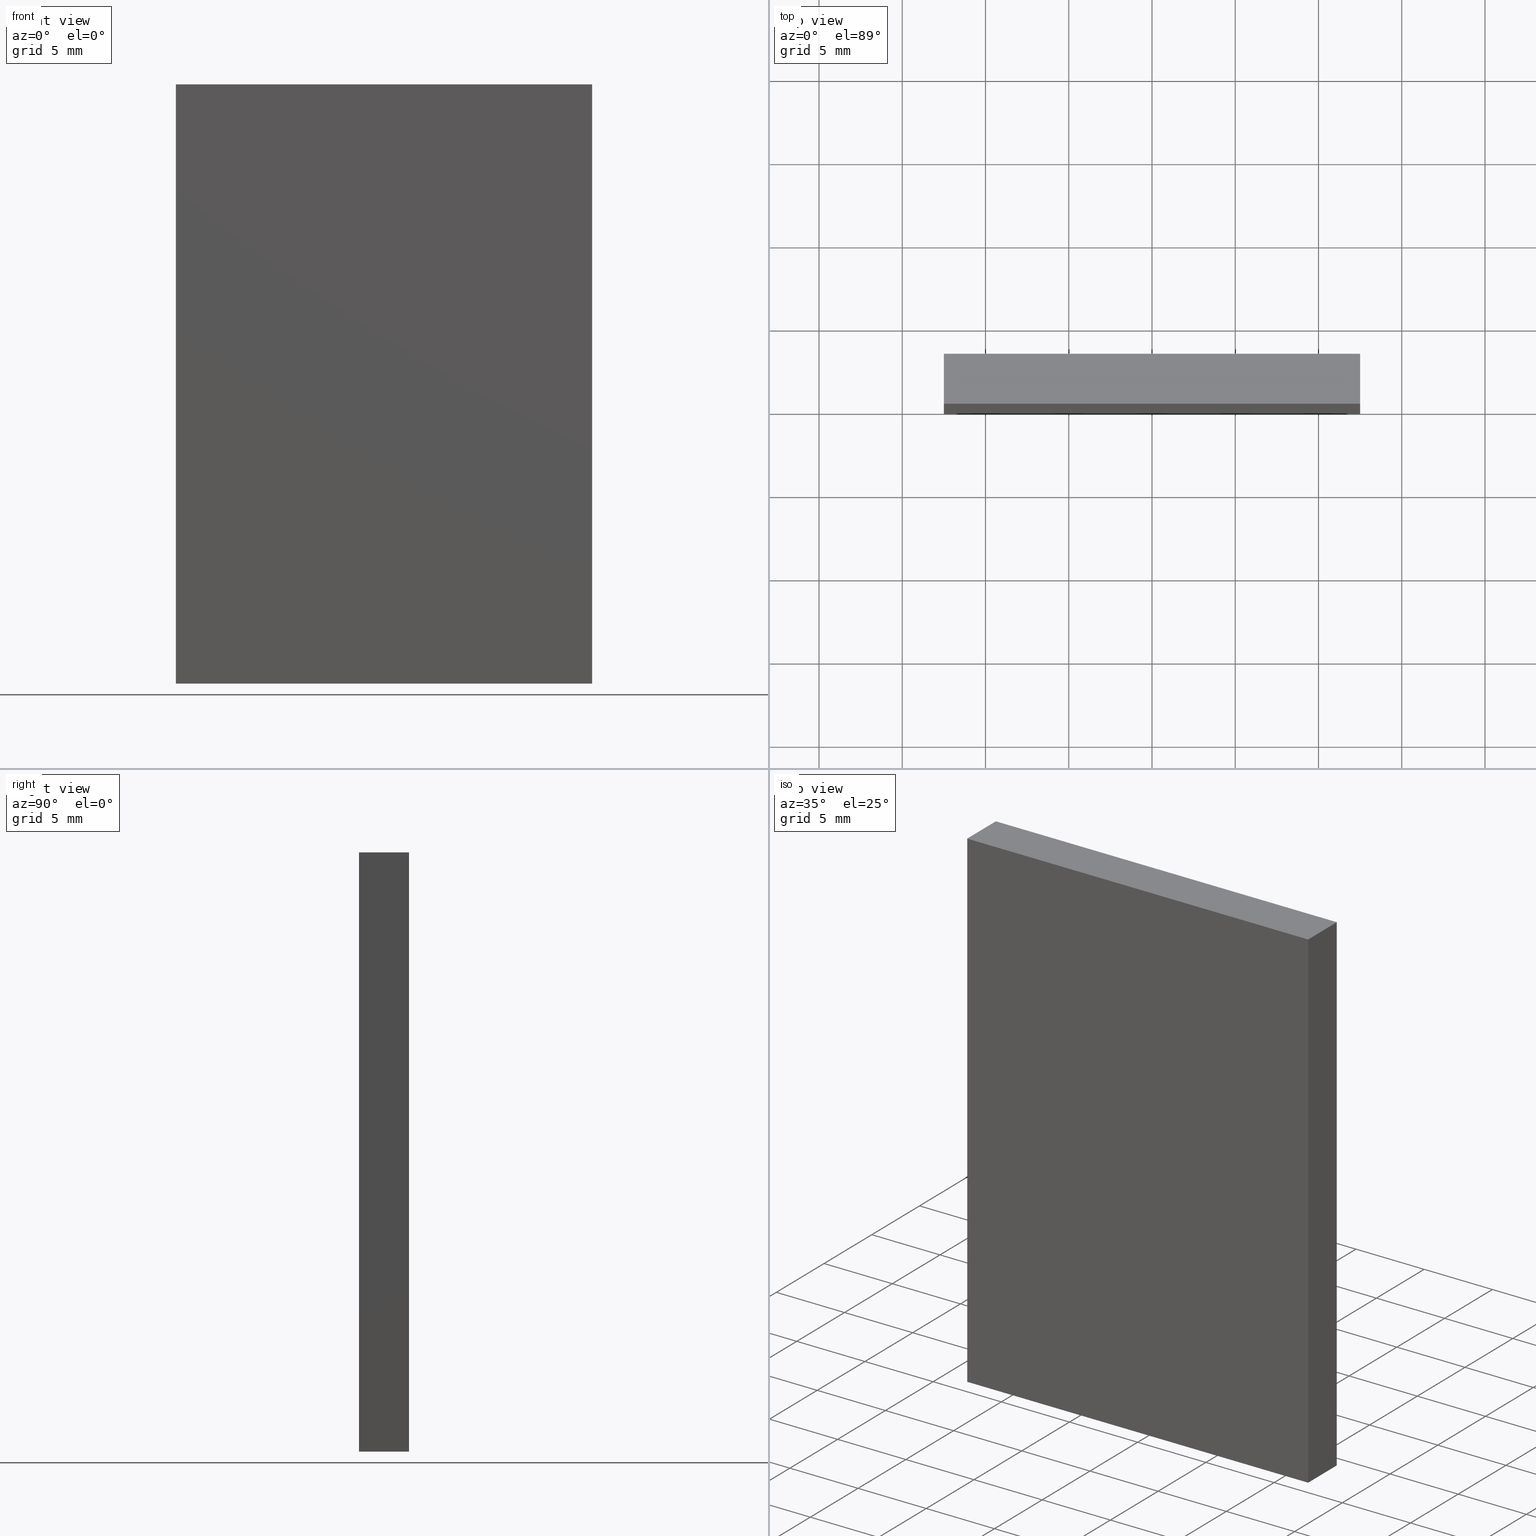
[diagram: canonical four-view strip — front | top / right | iso, engineering-drawing reading convention]
A machine part, canonical four-view strip (front | top / right | iso — engineering-drawing reading convention). The complete STEP part file that produces these views, byte-faithful:
ISO-10303-21;
HEADER;
FILE_DESCRIPTION (( 'STEP AP214' ),
    '1' );
FILE_NAME ('345505.STEP',
    '2019-08-12T03:39:13',
    ( 'user' ),
    ( '΢���й�' ),
    'SwSTEP 2.0',
    'SolidWorks 2016',
    '' );
FILE_SCHEMA (( 'AUTOMOTIVE_DESIGN' ));
ENDSEC;

DATA;
#1 = DIRECTION ( 'NONE',  ( -0.0000000000000000000, -1.000000000000000000, -0.0000000000000000000 ) ) ;
#2 = ORIENTED_EDGE ( 'NONE', *, *, #92, .F. ) ;
#3 = PRESENTATION_LAYER_ASSIGNMENT (  '', '', ( #184 ) ) ;
#4 = DIRECTION ( 'NONE',  ( 1.000000000000000000, 0.0000000000000000000, 0.0000000000000000000 ) ) ;
#5 = ADVANCED_FACE ( 'NONE', ( #111 ), #179, .F. ) ;
#6 = PLANE ( 'NONE',  #120 ) ;
#7 =( NAMED_UNIT ( * ) SI_UNIT ( $, .STERADIAN. ) SOLID_ANGLE_UNIT ( ) );
#8 = CLOSED_SHELL ( 'NONE', ( #75, #58, #133, #191, #117, #5 ) ) ;
#9 =( NAMED_UNIT ( * ) SI_UNIT ( $, .STERADIAN. ) SOLID_ANGLE_UNIT ( ) );
#10 = AXIS2_PLACEMENT_3D ( 'NONE', #45, #144, #164 ) ;
#11 = MECHANICAL_DESIGN_GEOMETRIC_PRESENTATION_REPRESENTATION (  '', ( #184 ), #19 ) ;
#12 = DIRECTION ( 'NONE',  ( 0.0000000000000000000, 1.000000000000000000, 0.0000000000000000000 ) ) ;
#13 = ORIENTED_EDGE ( 'NONE', *, *, #159, .F. ) ;
#14 = DIRECTION ( 'NONE',  ( -1.000000000000000000, -0.0000000000000000000, -0.0000000000000000000 ) ) ;
#15 = EDGE_LOOP ( 'NONE', ( #178, #13, #151, #60 ) ) ;
#16 = VECTOR ( 'NONE', #14, 1000.000000000000000 ) ;
#17 = LINE ( 'NONE', #122, #127 ) ;
#18 = PRODUCT_DEFINITION ( 'δ֪', '', #31, #20 ) ;
#19 =( GEOMETRIC_REPRESENTATION_CONTEXT ( 3 ) GLOBAL_UNCERTAINTY_ASSIGNED_CONTEXT ( ( #47 ) ) GLOBAL_UNIT_ASSIGNED_CONTEXT ( ( #67, #182, #9 ) ) REPRESENTATION_CONTEXT ( 'NONE', 'WORKASPACE' ) );
#20 = PRODUCT_DEFINITION_CONTEXT ( 'detailed design', #173, 'design' ) ;
#21 = CARTESIAN_POINT ( 'NONE',  ( 12.49999999999999500, 3.000000000000000000, -17.99999999999999600 ) ) ;
#22 = CARTESIAN_POINT ( 'NONE',  ( 12.49999999999999500, 0.0000000000000000000, -17.99999999999999600 ) ) ;
#23 = FILL_AREA_STYLE ('',( #129 ) ) ;
#24 = EDGE_LOOP ( 'NONE', ( #98, #25, #119, #26 ) ) ;
#25 = ORIENTED_EDGE ( 'NONE', *, *, #174, .F. ) ;
#26 = ORIENTED_EDGE ( 'NONE', *, *, #99, .T. ) ;
#27 = PLANE ( 'NONE',  #198 ) ;
#28 = DIRECTION ( 'NONE',  ( 1.000000000000000000, 0.0000000000000000000, -1.445602896647339400E-016 ) ) ;
#29 = FACE_OUTER_BOUND ( 'NONE', #61, .T. ) ;
#30 = DIRECTION ( 'NONE',  ( 1.000000000000000000, 0.0000000000000000000, -0.0000000000000000000 ) ) ;
#31 = PRODUCT_DEFINITION_FORMATION_WITH_SPECIFIED_SOURCE ( '�κ�', '', #139, .NOT_KNOWN. ) ;
#32 = CARTESIAN_POINT ( 'NONE',  ( 12.50000000000000000, 0.0000000000000000000, 18.00000000000000400 ) ) ;
#33 = DIRECTION ( 'NONE',  ( -1.000000000000000000, 0.0000000000000000000, -0.0000000000000000000 ) ) ;
#34 = VERTEX_POINT ( 'NONE', #141 ) ;
#35 = EDGE_CURVE ( 'NONE', #142, #161, #56, .T. ) ;
#36 = FACE_OUTER_BOUND ( 'NONE', #188, .T. ) ;
#37 = VECTOR ( 'NONE', #69, 1000.000000000000000 ) ;
#38 = DIRECTION ( 'NONE',  ( -1.445602896647339400E-016, -0.0000000000000000000, -1.000000000000000000 ) ) ;
#39 = PRODUCT_RELATED_PRODUCT_CATEGORY ( 'part', '', ( #139 ) ) ;
#40 = ORIENTED_EDGE ( 'NONE', *, *, #49, .T. ) ;
#41 = DIRECTION ( 'NONE',  ( -1.445602896647339400E-016, 0.0000000000000000000, -1.000000000000000000 ) ) ;
#42 = CARTESIAN_POINT ( 'NONE',  ( -12.50000000000000000, 3.000000000000000000, 18.00000000000000400 ) ) ;
#43 = CARTESIAN_POINT ( 'NONE',  ( -12.50000000000000500, 3.000000000000000000, -17.99999999999999600 ) ) ;
#44 = DIRECTION ( 'NONE',  ( 1.000000000000000000, 0.0000000000000000000, 0.0000000000000000000 ) ) ;
#45 = CARTESIAN_POINT ( 'NONE',  ( 0.0000000000000000000, 0.0000000000000000000, 0.0000000000000000000 ) ) ;
#46 = APPLICATION_CONTEXT ( 'automotive_design' ) ;
#47 = UNCERTAINTY_MEASURE_WITH_UNIT (LENGTH_MEASURE( 1.000000000000000100E-005 ), #67, 'distance_accuracy_value', 'NONE');
#48 = ORIENTED_EDGE ( 'NONE', *, *, #134, .T. ) ;
#49 = EDGE_CURVE ( 'NONE', #34, #189, #63, .T. ) ;
#50 = CARTESIAN_POINT ( 'NONE',  ( -12.50000000000000500, 3.000000000000000000, -17.99999999999999600 ) ) ;
#51 = LINE ( 'NONE', #50, #192 ) ;
#52 = SURFACE_SIDE_STYLE ('',( #180 ) ) ;
#53 = ORIENTED_EDGE ( 'NONE', *, *, #92, .T. ) ;
#54 = DIRECTION ( 'NONE',  ( 1.445602896647339400E-016, 0.0000000000000000000, 1.000000000000000000 ) ) ;
#55 = EDGE_LOOP ( 'NONE', ( #89, #101, #168, #48 ) ) ;
#56 = LINE ( 'NONE', #93, #153 ) ;
#57 = CARTESIAN_POINT ( 'NONE',  ( -12.50000000000000000, 3.000000000000000000, 18.00000000000000400 ) ) ;
#58 = ADVANCED_FACE ( 'NONE', ( #29 ), #84, .F. ) ;
#59 = SURFACE_SIDE_STYLE ('',( #68 ) ) ;
#60 = ORIENTED_EDGE ( 'NONE', *, *, #70, .F. ) ;
#61 = EDGE_LOOP ( 'NONE', ( #193, #143, #2, #105 ) ) ;
#62 = COLOUR_RGB ( '',1.000000000000000000, 1.000000000000000000, 1.000000000000000000 ) ;
#63 = LINE ( 'NONE', #21, #158 ) ;
#64 = PLANE ( 'NONE',  #148 ) ;
#65 = DIRECTION ( 'NONE',  ( -0.0000000000000000000, -1.000000000000000000, -0.0000000000000000000 ) ) ;
#66 = VECTOR ( 'NONE', #65, 1000.000000000000000 ) ;
#67 =( LENGTH_UNIT ( ) NAMED_UNIT ( * ) SI_UNIT ( .MILLI., .METRE. ) );
#68 = SURFACE_STYLE_FILL_AREA ( #136 ) ;
#69 = DIRECTION ( 'NONE',  ( -0.0000000000000000000, -1.000000000000000000, -0.0000000000000000000 ) ) ;
#70 = EDGE_CURVE ( 'NONE', #83, #142, #200, .T. ) ;
#71 = ADVANCED_BREP_SHAPE_REPRESENTATION ( '345505', ( #138, #10 ), #110 ) ;
#72 = EDGE_CURVE ( 'NONE', #137, #34, #185, .T. ) ;
#73 = DIRECTION ( 'NONE',  ( -1.000000000000000000, -0.0000000000000000000, -0.0000000000000000000 ) ) ;
#74 = DIRECTION ( 'NONE',  ( 0.0000000000000000000, 0.0000000000000000000, 1.000000000000000000 ) ) ;
#75 = ADVANCED_FACE ( 'NONE', ( #162 ), #64, .F. ) ;
#76 = APPLICATION_PROTOCOL_DEFINITION ( 'draft international standard', 'automotive_design', 1998, #173 ) ;
#77 =( NAMED_UNIT ( * ) PLANE_ANGLE_UNIT ( ) SI_UNIT ( $, .RADIAN. ) );
#78 =( LENGTH_UNIT ( ) NAMED_UNIT ( * ) SI_UNIT ( .MILLI., .METRE. ) );
#79 = LINE ( 'NONE', #42, #66 ) ;
#80 = DIRECTION ( 'NONE',  ( -1.445602896647339400E-016, -0.0000000000000000000, -1.000000000000000000 ) ) ;
#81 = DIRECTION ( 'NONE',  ( 0.0000000000000000000, 1.000000000000000000, 0.0000000000000000000 ) ) ;
#82 = DIRECTION ( 'NONE',  ( 0.0000000000000000000, -0.0000000000000000000, 1.000000000000000000 ) ) ;
#83 = VERTEX_POINT ( 'NONE', #130 ) ;
#84 = PLANE ( 'NONE',  #121 ) ;
#85 = CARTESIAN_POINT ( 'NONE',  ( 12.49999999999999500, 3.000000000000000000, -17.99999999999999600 ) ) ;
#86 = DIRECTION ( 'NONE',  ( -0.0000000000000000000, -1.000000000000000000, -0.0000000000000000000 ) ) ;
#87 = SHAPE_DEFINITION_REPRESENTATION ( #108, #71 ) ;
#88 = EDGE_CURVE ( 'NONE', #189, #83, #17, .T. ) ;
#89 = ORIENTED_EDGE ( 'NONE', *, *, #35, .T. ) ;
#90 = LINE ( 'NONE', #186, #37 ) ;
#91 = VERTEX_POINT ( 'NONE', #96 ) ;
#92 = EDGE_CURVE ( 'NONE', #189, #91, #114, .T. ) ;
#93 = CARTESIAN_POINT ( 'NONE',  ( -12.50000000000000500, 0.0000000000000000000, -17.99999999999999600 ) ) ;
#94 = CARTESIAN_POINT ( 'NONE',  ( -12.50000000000000000, 0.0000000000000000000, 18.00000000000000400 ) ) ;
#95 = ORIENTED_EDGE ( 'NONE', *, *, #72, .T. ) ;
#96 = CARTESIAN_POINT ( 'NONE',  ( -12.50000000000000500, 3.000000000000000000, -17.99999999999999600 ) ) ;
#97 = PRESENTATION_STYLE_ASSIGNMENT (( #146 ) ) ;
#98 = ORIENTED_EDGE ( 'NONE', *, *, #159, .T. ) ;
#99 = EDGE_CURVE ( 'NONE', #137, #161, #79, .T. ) ;
#100 = AXIS2_PLACEMENT_3D ( 'NONE', #131, #12, #82 ) ;
#101 = ORIENTED_EDGE ( 'NONE', *, *, #99, .F. ) ;
#102 = VECTOR ( 'NONE', #44, 1000.000000000000000 ) ;
#103 = CARTESIAN_POINT ( 'NONE',  ( 12.49999999999999500, 3.000000000000000000, -17.99999999999999600 ) ) ;
#104 = ORIENTED_EDGE ( 'NONE', *, *, #145, .T. ) ;
#105 = ORIENTED_EDGE ( 'NONE', *, *, #88, .T. ) ;
#106 = ORIENTED_EDGE ( 'NONE', *, *, #88, .F. ) ;
#107 = LINE ( 'NONE', #116, #102 ) ;
#108 = PRODUCT_DEFINITION_SHAPE ( 'NONE', 'NONE',  #18 ) ;
#109 = VECTOR ( 'NONE', #4, 1000.000000000000000 ) ;
#110 =( GEOMETRIC_REPRESENTATION_CONTEXT ( 3 ) GLOBAL_UNCERTAINTY_ASSIGNED_CONTEXT ( ( #181 ) ) GLOBAL_UNIT_ASSIGNED_CONTEXT ( ( #172, #77, #7 ) ) REPRESENTATION_CONTEXT ( 'NONE', 'WORKASPACE' ) );
#111 = FACE_OUTER_BOUND ( 'NONE', #15, .T. ) ;
#112 = DIRECTION ( 'NONE',  ( 0.0000000000000000000, -0.0000000000000000000, 1.000000000000000000 ) ) ;
#113 = CARTESIAN_POINT ( 'NONE',  ( 0.0000000000000000000, 3.000000000000000000, 0.0000000000000000000 ) ) ;
#114 = LINE ( 'NONE', #152, #16 ) ;
#115 = CARTESIAN_POINT ( 'NONE',  ( -12.50000000000000000, 3.000000000000000000, 18.00000000000000400 ) ) ;
#116 = CARTESIAN_POINT ( 'NONE',  ( -12.50000000000000000, 0.0000000000000000000, 18.00000000000000400 ) ) ;
#117 = ADVANCED_FACE ( 'NONE', ( #36 ), #202, .T. ) ;
#118 = DIRECTION ( 'NONE',  ( 0.0000000000000000000, 0.0000000000000000000, -1.000000000000000000 ) ) ;
#119 = ORIENTED_EDGE ( 'NONE', *, *, #72, .F. ) ;
#120 = AXIS2_PLACEMENT_3D ( 'NONE', #57, #118, #33 ) ;
#121 = AXIS2_PLACEMENT_3D ( 'NONE', #43, #74, #30 ) ;
#122 = CARTESIAN_POINT ( 'NONE',  ( 12.49999999999999500, 3.000000000000000000, -17.99999999999999600 ) ) ;
#123 = VECTOR ( 'NONE', #38, 1000.000000000000000 ) ;
#124 = DIRECTION ( 'NONE',  ( 1.445602896647339400E-016, 0.0000000000000000000, 1.000000000000000000 ) ) ;
#125 = CARTESIAN_POINT ( 'NONE',  ( -12.50000000000000500, 0.0000000000000000000, -17.99999999999999600 ) ) ;
#126 = VECTOR ( 'NONE', #86, 1000.000000000000000 ) ;
#127 = VECTOR ( 'NONE', #1, 1000.000000000000000 ) ;
#128 = LINE ( 'NONE', #22, #123 ) ;
#129 = FILL_AREA_STYLE_COLOUR ( '', #140 ) ;
#130 = CARTESIAN_POINT ( 'NONE',  ( 12.49999999999999500, 0.0000000000000000000, -17.99999999999999600 ) ) ;
#131 = CARTESIAN_POINT ( 'NONE',  ( 0.0000000000000000000, 0.0000000000000000000, 0.0000000000000000000 ) ) ;
#132 =( NAMED_UNIT ( * ) SI_UNIT ( $, .STERADIAN. ) SOLID_ANGLE_UNIT ( ) );
#133 = ADVANCED_FACE ( 'NONE', ( #196 ), #27, .F. ) ;
#134 = EDGE_CURVE ( 'NONE', #91, #142, #90, .T. ) ;
#135 = FILL_AREA_STYLE_COLOUR ( '', #62 ) ;
#136 = FILL_AREA_STYLE ('',( #135 ) ) ;
#137 = VERTEX_POINT ( 'NONE', #167 ) ;
#138 = MANIFOLD_SOLID_BREP ( '͹̨-����1', #8 ) ;
#139 = PRODUCT ( '345505', '345505', '', ( #199 ) ) ;
#140 = COLOUR_RGB ( '',1.000000000000000000, 1.000000000000000000, 1.000000000000000000 ) ;
#141 = CARTESIAN_POINT ( 'NONE',  ( 12.50000000000000000, 3.000000000000000000, 18.00000000000000400 ) ) ;
#142 = VERTEX_POINT ( 'NONE', #125 ) ;
#143 = ORIENTED_EDGE ( 'NONE', *, *, #134, .F. ) ;
#144 = DIRECTION ( 'NONE',  ( 0.0000000000000000000, 0.0000000000000000000, 1.000000000000000000 ) ) ;
#145 = EDGE_CURVE ( 'NONE', #165, #83, #128, .T. ) ;
#146 = SURFACE_STYLE_USAGE ( .BOTH. , #52 ) ;
#147 = STYLED_ITEM ( 'NONE', ( #154 ), #71 ) ;
#148 = AXIS2_PLACEMENT_3D ( 'NONE', #85, #169, #54 ) ;
#149 = ORIENTED_EDGE ( 'NONE', *, *, #156, .T. ) ;
#150 = DIRECTION ( 'NONE',  ( 1.445602896647339400E-016, 0.0000000000000000000, 1.000000000000000000 ) ) ;
#151 = ORIENTED_EDGE ( 'NONE', *, *, #35, .F. ) ;
#152 = CARTESIAN_POINT ( 'NONE',  ( -12.50000000000000500, 3.000000000000000000, -17.99999999999999600 ) ) ;
#153 = VECTOR ( 'NONE', #124, 1000.000000000000000 ) ;
#154 = PRESENTATION_STYLE_ASSIGNMENT (( #194 ) ) ;
#155 = APPLICATION_PROTOCOL_DEFINITION ( 'draft international standard', 'automotive_design', 1998, #46 ) ;
#156 = EDGE_CURVE ( 'NONE', #91, #137, #51, .T. ) ;
#157 = LINE ( 'NONE', #201, #126 ) ;
#158 = VECTOR ( 'NONE', #80, 1000.000000000000000 ) ;
#159 = EDGE_CURVE ( 'NONE', #161, #165, #107, .T. ) ;
#160 = PRESENTATION_LAYER_ASSIGNMENT (  '', '', ( #147 ) ) ;
#161 = VERTEX_POINT ( 'NONE', #94 ) ;
#162 = FACE_OUTER_BOUND ( 'NONE', #177, .T. ) ;
#163 = CARTESIAN_POINT ( 'NONE',  ( -12.50000000000000500, 3.000000000000000000, -17.99999999999999600 ) ) ;
#164 = DIRECTION ( 'NONE',  ( 1.000000000000000000, 0.0000000000000000000, 0.0000000000000000000 ) ) ;
#165 = VERTEX_POINT ( 'NONE', #32 ) ;
#166 = VECTOR ( 'NONE', #73, 1000.000000000000000 ) ;
#167 = CARTESIAN_POINT ( 'NONE',  ( -12.50000000000000000, 3.000000000000000000, 18.00000000000000400 ) ) ;
#168 = ORIENTED_EDGE ( 'NONE', *, *, #156, .F. ) ;
#169 = DIRECTION ( 'NONE',  ( -1.000000000000000000, 0.0000000000000000000, 1.445602896647339400E-016 ) ) ;
#170 = MECHANICAL_DESIGN_GEOMETRIC_PRESENTATION_REPRESENTATION (  '', ( #147 ), #183 ) ;
#171 = AXIS2_PLACEMENT_3D ( 'NONE', #113, #81, #112 ) ;
#172 =( LENGTH_UNIT ( ) NAMED_UNIT ( * ) SI_UNIT ( .MILLI., .METRE. ) );
#173 = APPLICATION_CONTEXT ( 'automotive_design' ) ;
#174 = EDGE_CURVE ( 'NONE', #34, #165, #157, .T. ) ;
#175 =( NAMED_UNIT ( * ) PLANE_ANGLE_UNIT ( ) SI_UNIT ( $, .RADIAN. ) );
#176 = ORIENTED_EDGE ( 'NONE', *, *, #174, .T. ) ;
#177 = EDGE_LOOP ( 'NONE', ( #104, #106, #195, #176 ) ) ;
#178 = ORIENTED_EDGE ( 'NONE', *, *, #145, .F. ) ;
#179 = PLANE ( 'NONE',  #100 ) ;
#180 = SURFACE_STYLE_FILL_AREA ( #23 ) ;
#181 = UNCERTAINTY_MEASURE_WITH_UNIT (LENGTH_MEASURE( 1.000000000000000100E-005 ), #172, 'distance_accuracy_value', 'NONE');
#182 =( NAMED_UNIT ( * ) PLANE_ANGLE_UNIT ( ) SI_UNIT ( $, .RADIAN. ) );
#183 =( GEOMETRIC_REPRESENTATION_CONTEXT ( 3 ) GLOBAL_UNCERTAINTY_ASSIGNED_CONTEXT ( ( #197 ) ) GLOBAL_UNIT_ASSIGNED_CONTEXT ( ( #78, #175, #132 ) ) REPRESENTATION_CONTEXT ( 'NONE', 'WORKASPACE' ) );
#184 = STYLED_ITEM ( 'NONE', ( #97 ), #138 ) ;
#185 = LINE ( 'NONE', #115, #109 ) ;
#186 = CARTESIAN_POINT ( 'NONE',  ( -12.50000000000000500, 3.000000000000000000, -17.99999999999999600 ) ) ;
#187 = FACE_OUTER_BOUND ( 'NONE', #24, .T. ) ;
#188 = EDGE_LOOP ( 'NONE', ( #40, #53, #149, #95 ) ) ;
#189 = VERTEX_POINT ( 'NONE', #103 ) ;
#190 = CARTESIAN_POINT ( 'NONE',  ( -12.50000000000000500, 0.0000000000000000000, -17.99999999999999600 ) ) ;
#191 = ADVANCED_FACE ( 'NONE', ( #187 ), #6, .F. ) ;
#192 = VECTOR ( 'NONE', #150, 1000.000000000000000 ) ;
#193 = ORIENTED_EDGE ( 'NONE', *, *, #70, .T. ) ;
#194 = SURFACE_STYLE_USAGE ( .BOTH. , #59 ) ;
#195 = ORIENTED_EDGE ( 'NONE', *, *, #49, .F. ) ;
#196 = FACE_OUTER_BOUND ( 'NONE', #55, .T. ) ;
#197 = UNCERTAINTY_MEASURE_WITH_UNIT (LENGTH_MEASURE( 1.000000000000000100E-005 ), #78, 'distance_accuracy_value', 'NONE');
#198 = AXIS2_PLACEMENT_3D ( 'NONE', #163, #28, #41 ) ;
#199 = PRODUCT_CONTEXT ( 'NONE', #46, 'mechanical' ) ;
#200 = LINE ( 'NONE', #190, #166 ) ;
#201 = CARTESIAN_POINT ( 'NONE',  ( 12.50000000000000000, 3.000000000000000000, 18.00000000000000400 ) ) ;
#202 = PLANE ( 'NONE',  #171 ) ;
ENDSEC;
END-ISO-10303-21;
